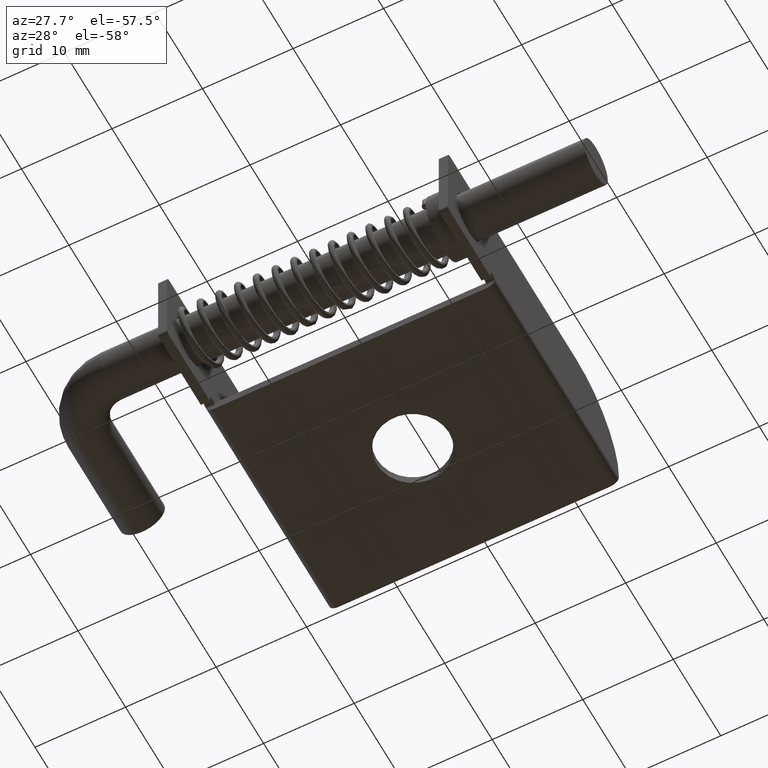
[diagram: clean part render]
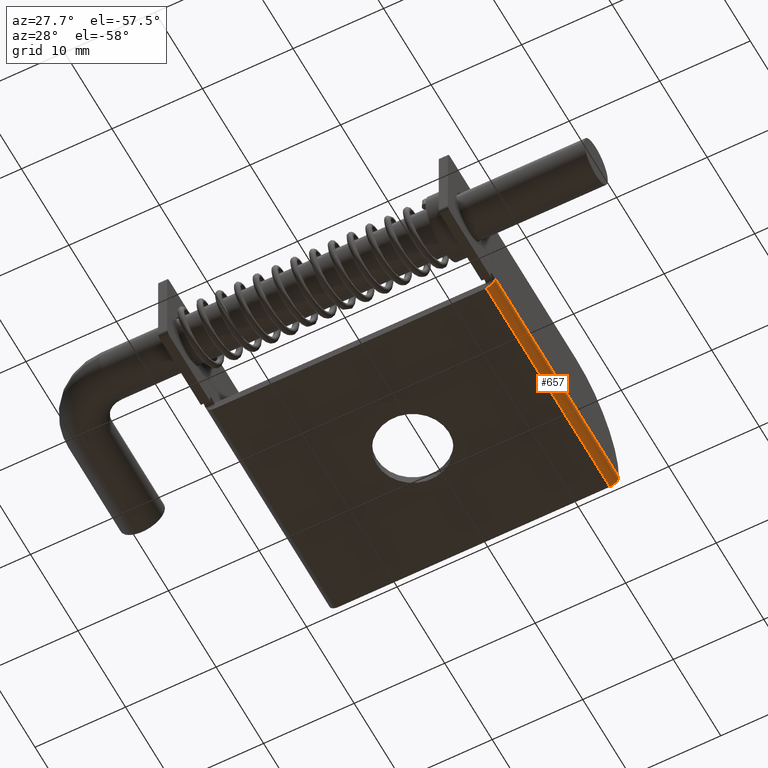
[diagram: same view with one face highlighted and labeled with its STEP entity id]
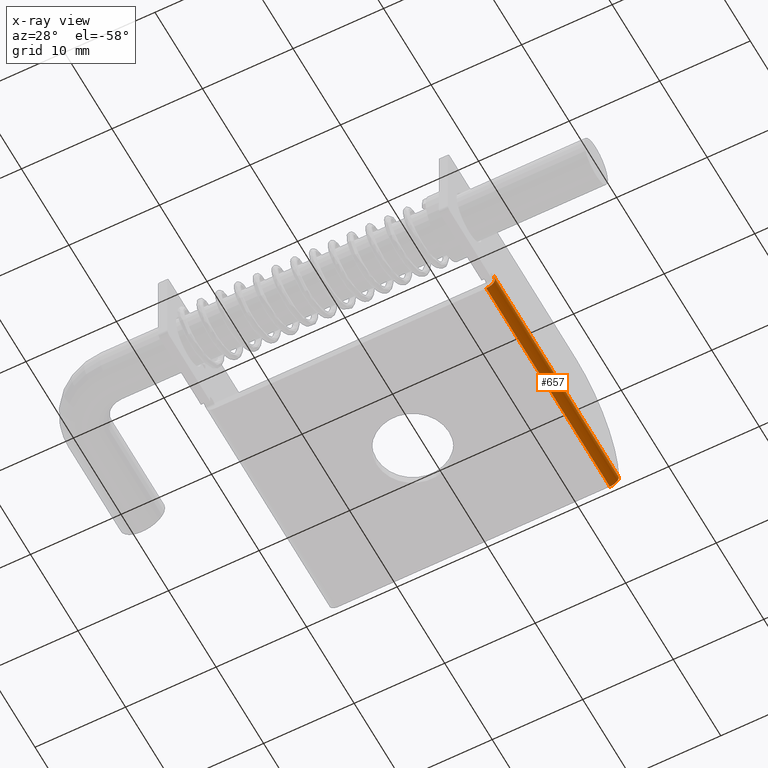
[diagram: x-ray of the same camera — body ghosted, the highlighted face saturated]
A machine part, auxiliary view. The second image highlights one B-rep face of the part: STEP entity #657.
The next image is the same camera in x-ray: the body ghosted, the highlighted face saturated — about 0% of this face is hidden behind the body in this view.
In plain terms, the highlighted cylindrical surface (edge-blend (fillet) strip) has radius 1 mm, axis along (0, 1, 0).
Its self-contained STEP definition (entity closure, byte-faithful):
#27=B_SPLINE_CURVE_WITH_KNOTS('',3,(#1078,#1079,#1080,#1081,#1082,#1083,
#1084,#1085,#1086,#1087),.UNSPECIFIED.,.F.,.F.,(4,2,2,2,4),(-0.189546105077368,
-0.170679806170393,-0.151813507263419,-0.131841497606058,-0.111869487948698),
 .UNSPECIFIED.);
#37=LINE('',#1025,#83);
#52=LINE('',#1090,#98);
#83=VECTOR('',#825,26.5);
#98=VECTOR('',#878,26.);
#146=CYLINDRICAL_SURFACE('',#727,1.);
#188=FACE_OUTER_BOUND('',#239,.T.);
#239=EDGE_LOOP('',(#509,#510,#511,#512,#513));
#292=CIRCLE('',#728,1.);
#293=CIRCLE('',#729,1.);
#320=VERTEX_POINT('',#1022);
#321=VERTEX_POINT('',#1024);
#340=VERTEX_POINT('',#1075);
#341=VERTEX_POINT('',#1077);
#342=VERTEX_POINT('',#1088);
#381=EDGE_CURVE('',#321,#320,#37,.T.);
#406=EDGE_CURVE('',#340,#321,#292,.T.);
#407=EDGE_CURVE('',#320,#341,#27,.T.);
#408=EDGE_CURVE('',#341,#342,#293,.T.);
#409=EDGE_CURVE('',#342,#340,#52,.T.);
#509=ORIENTED_EDGE('',*,*,#406,.T.);
#510=ORIENTED_EDGE('',*,*,#381,.T.);
#511=ORIENTED_EDGE('',*,*,#407,.T.);
#512=ORIENTED_EDGE('',*,*,#408,.T.);
#513=ORIENTED_EDGE('',*,*,#409,.T.);
#657=ADVANCED_FACE('',(#188),#146,.T.);
#727=AXIS2_PLACEMENT_3D('',#1074,#872,#873);
#728=AXIS2_PLACEMENT_3D('',#1076,#874,#875);
#729=AXIS2_PLACEMENT_3D('',#1089,#876,#877);
#825=DIRECTION('',(0.,-1.,0.));
#872=DIRECTION('center_axis',(0.,1.,0.));
#873=DIRECTION('ref_axis',(0.707106781186548,0.,-0.707106781186547));
#874=DIRECTION('center_axis',(-1.12462729995322E-19,-1.,0.));
#875=DIRECTION('ref_axis',(0.707106781186548,-7.9523159010444E-20,-0.707106781186547));
#876=DIRECTION('center_axis',(0.,1.,0.));
#877=DIRECTION('ref_axis',(0.707106781186548,0.,-0.707106781186547));
#878=DIRECTION('',(0.,1.,0.));
#1022=CARTESIAN_POINT('',(16.,-26.5,1.));
#1024=CARTESIAN_POINT('',(16.,0.,1.));
#1025=CARTESIAN_POINT('',(16.,-24.5,1.));
#1074=CARTESIAN_POINT('Origin',(15.,-24.5,1.));
#1075=CARTESIAN_POINT('',(15.,-1.68694094992983E-18,0.));
#1076=CARTESIAN_POINT('Origin',(15.,0.,1.));
#1077=CARTESIAN_POINT('',(15.8660254037844,-26.,0.5));
#1078=CARTESIAN_POINT('Ctrl Pts',(16.,-26.5,0.999999999999998));
#1079=CARTESIAN_POINT('Ctrl Pts',(16.,-26.4371123369768,0.999999999999998));
#1080=CARTESIAN_POINT('Ctrl Pts',(16.0002476240636,-26.3700536372052,0.987404285024258));
#1081=CARTESIAN_POINT('Ctrl Pts',(15.998296436639,-26.2468306184266,0.936296059469126));
#1082=CARTESIAN_POINT('Ctrl Pts',(15.9957660061388,-26.1906732377867,0.89778001897328));
#1083=CARTESIAN_POINT('Ctrl Pts',(15.9822874153827,-26.0996279592055,0.806734740392015));
#1084=CARTESIAN_POINT('Ctrl Pts',(15.9698527565504,-26.0604710829083,0.74762018907196));
#1085=CARTESIAN_POINT('Ctrl Pts',(15.9285332180137,-26.0107406787701,0.62299066931652));
#1086=CARTESIAN_POINT('Ctrl Pts',(15.8993120865467,-26.,0.557654225759673));
#1087=CARTESIAN_POINT('Ctrl Pts',(15.8660254037844,-26.,0.5));
#1088=CARTESIAN_POINT('',(15.,-26.,0.));
#1089=CARTESIAN_POINT('Origin',(15.,-26.,1.));
#1090=CARTESIAN_POINT('',(15.,-24.5,0.));